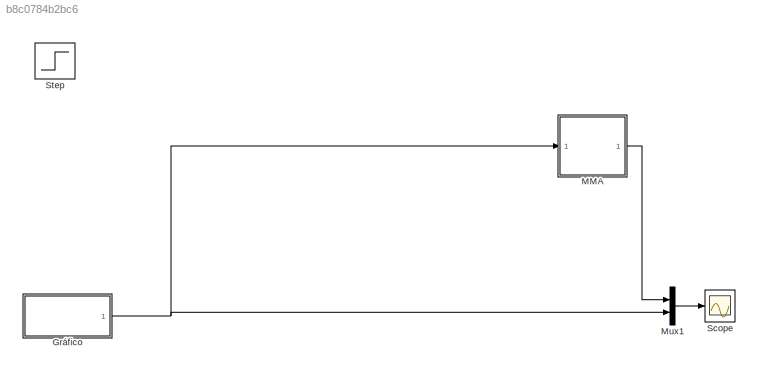
MODEL slx_b8c0784b2bc6
KIND model
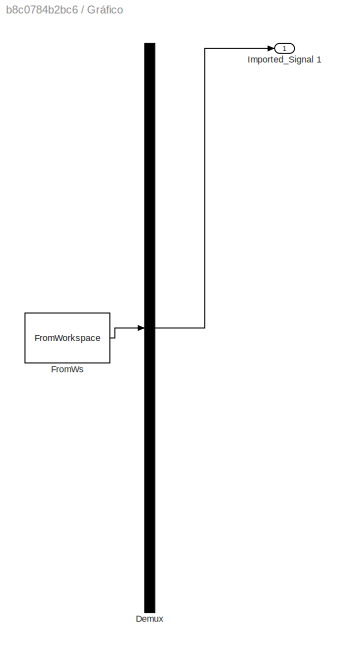
BLOCK [SubSystem] Gráfico
  ClipboardFcn = sigbuilder_block('clipboard');
  CloseFcn = sigbuilder_block('close');
  ContinueFcn = sigbuilder_block('continue');
  CopyFcn = sigbuilder_block('copy');
  DeleteFcn = sigbuilder_block('delete');
  FunctionWithSeparateData = off
  LoadFcn = sigbuilder_block('load');
  MaskHideContents = on
  MinAlgLoopOccurrences = off
  ModelCloseFcn = sigbuilder_block('modelClose');
  NameChangeFcn = sigbuilder_block('namechange');
  Opaque = off
  OpenFcn = sigbuilder_block('open',[518.25 36 500.25 477 ]);
  PauseFcn = sigbuilder_block('pause');
  Ports = [0, 1]
  PreSaveFcn = sigbuilder_block('preSave');
  PropExecContextOutsideSubsystem = off
  RTWSystemCode = Auto
  RequestExecContextInheritance = off
  StartFcn = sigbuilder_block('start');
  StopFcn = sigbuilder_block('stop');
  Tag = STV Subsys
BLOCK [Demux] Gráfico/Demux
  Outputs = 1
  Ports = [1, 1]
  Tag = STV Demux
BLOCK [FromWorkspace] Gráfico/FromWs
  SampleTime = 0
  Tag = STV FromWs
  VariableName = tuvar
  ZeroCross = on
BLOCK [Outport] Gráfico/Imported_Signal 1
  IconDisplay = Port number
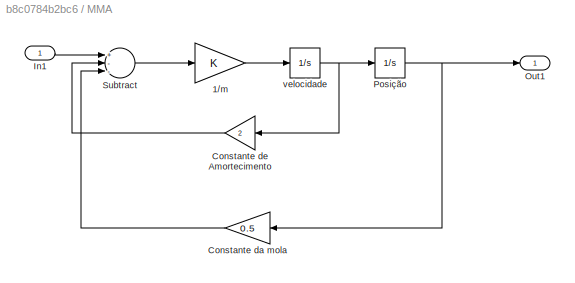
BLOCK [SubSystem] MMA
  FunctionWithSeparateData = off
  MaskHideContents = off
  MinAlgLoopOccurrences = off
  Opaque = off
  Ports = [1, 1]
  PropExecContextOutsideSubsystem = off
  RTWSystemCode = Auto
  RequestExecContextInheritance = off
BLOCK [Gain] MMA/1//m
  OutDataTypeStr = Inherit: Inherit via internal rule
  ParamDataTypeStr = Inherit: Inherit via internal rule
  SaturateOnIntegerOverflow = off
BLOCK [Gain] MMA/Constante da mola
  Gain = 0.5
  OutDataTypeStr = Inherit: Inherit via internal rule
  ParamDataTypeStr = Inherit: Inherit via internal rule
  SaturateOnIntegerOverflow = off
BLOCK [Gain] MMA/Constante de Amortecimento
  Gain = 2
  OutDataTypeStr = Inherit: Inherit via internal rule
  ParamDataTypeStr = Inherit: Inherit via internal rule
  SaturateOnIntegerOverflow = off
BLOCK [Inport] MMA/In1
  IconDisplay = Port number
BLOCK [Outport] MMA/Out1
  IconDisplay = Port number
BLOCK [Integrator] MMA/Posição
  Ports = [1, 1]
BLOCK [Sum] MMA/Subtract
  InputSameDT = off
  Inputs = +--
  OutDataTypeStr = Inherit: Inherit via internal rule
  Ports = [3, 1]
  SaturateOnIntegerOverflow = off
BLOCK [Integrator] MMA/velocidade
  Ports = [1, 1]
BLOCK [Mux] Mux1
  DisplayOption = bar
  Inputs = 2
  Ports = [2, 1]
BLOCK [Scope] Scope
  DataFormat = StructureWithTime
  Floating = off
  NumInputPorts = 1
  Ports = [1]
  SampleInput = on
  SampleTime = 0
  SaveToWorkspace = on
  ShowLegends = off
  TickLabels = on
  TimeRange = 45
  YMax = 2
  YMin = -0.5
  ZoomMode = yonly
BLOCK [Step] Step
  SampleTime = 0
NET Gráfico:1 -> MMA:1, Mux1:2
LINE MMA/1//m:1 -> MMA/velocidade:1
LINE MMA/Constante da mola:1 -> MMA/Subtract:3
LINE MMA/Constante de Amortecimento:1 -> MMA/Subtract:2
LINE MMA/In1:1 -> MMA/Subtract:1
NET MMA/Posição:1 -> MMA/Constante da mola:1, MMA/Out1:1
LINE MMA/Subtract:1 -> MMA/1//m:1
NET MMA/velocidade:1 -> MMA/Constante de Amortecimento:1, MMA/Posição:1
LINE MMA:1 -> Mux1:1
LINE Mux1:1 -> Scope:1
note: NET lines group one-source signal fan-out (src -> all destinations, sorted); 1:1 wires keep LINE
